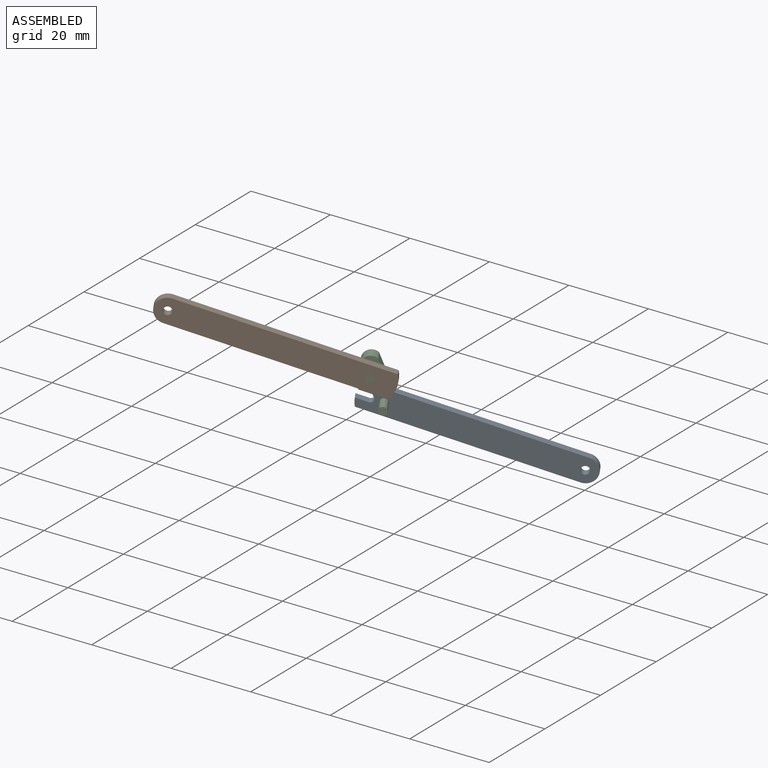
[diagram: assembled view]
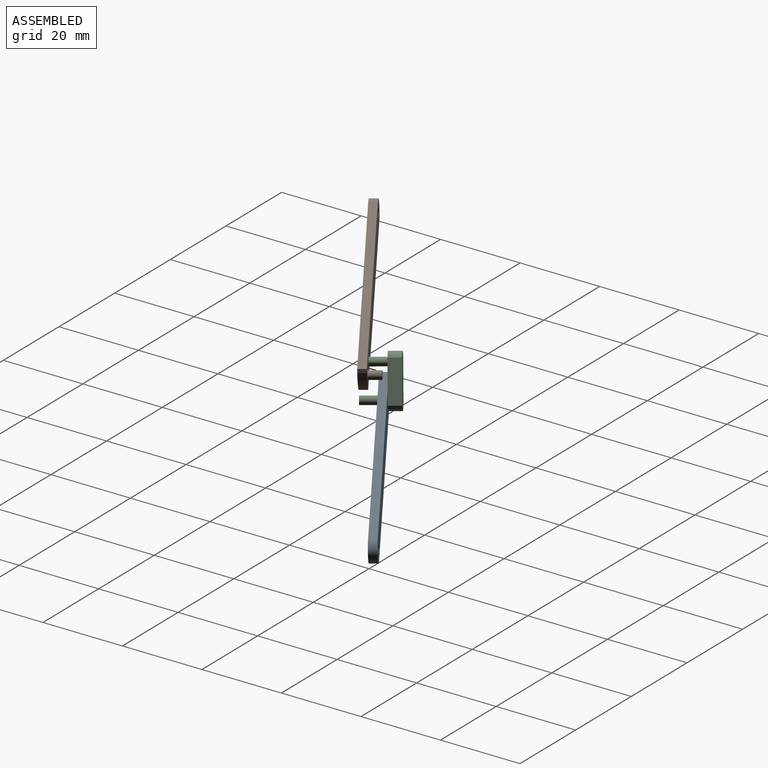
[diagram: assembled view, second angle]
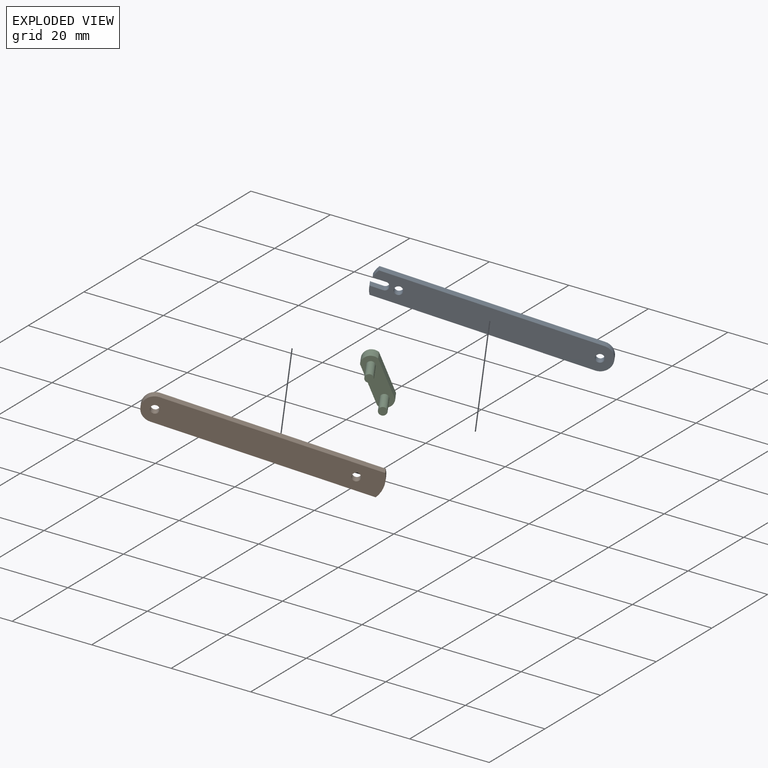
[diagram: exploded view]
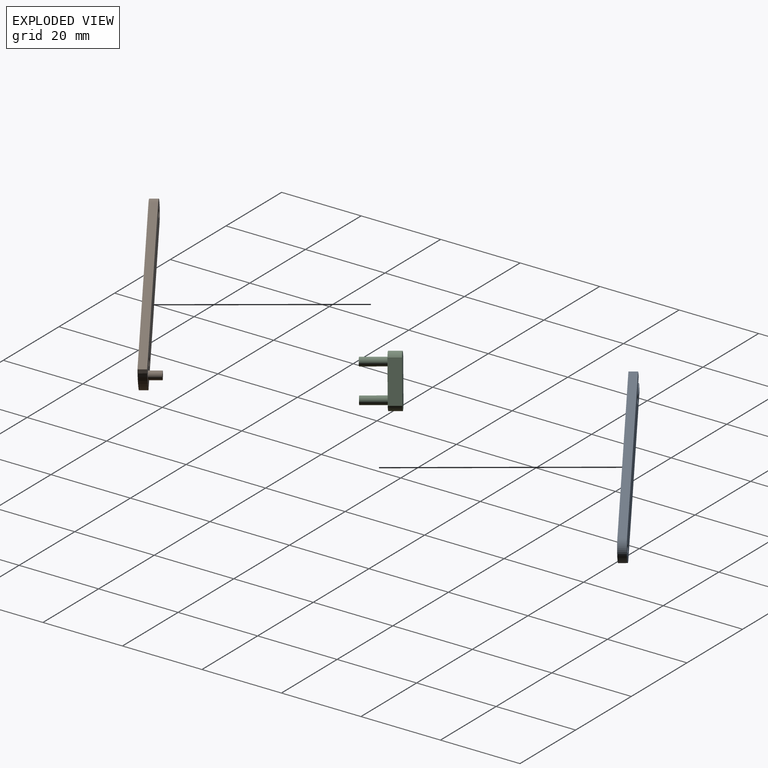
[diagram: exploded view, second angle]
ASSEMBLY  parts=3 mates=3
PART A: 12 faces, bbox 53x2x6 mm
  f0: cylinder r=1mm len=2mm, axis (0,1,0), area 6.3mm2, adj f1,f8,f10,f11
  f1: plane 3x2mm, normal (0,0,1), area 6mm2, adj f0,f2,f10,f11
  f2: cylinder r=6.08mm len=2mm, axis (0,1,0), area 4.3mm2, adj f1,f3,f10,f11
  f3: plane 49.29x2mm, normal (0,0,-1), area 98.6mm2, adj f2,f4,f10,f11
  f4: cylinder r=3mm len=6mm, axis (0,1,0), area 18.8mm2, adj f3,f5,f10,f11
  f5: plane 49.29x2mm, normal (0,0,1), area 98.6mm2, adj f4,f6,f10,f11
  f6: cylinder r=6.08mm len=2mm, axis (0,1,0), area 4.3mm2, adj f5,f8,f10,f11
  f7: cylinder r=1mm len=2mm, axis (0,1,0), area 12.6mm2, adj f10,f11
  f8: plane 3x2mm, normal (0,0,-1), area 6mm2, adj f0,f6,f10,f11
  f9: cylinder r=1mm len=2mm, axis (0,1,0), area 12.6mm2, adj f10,f11
  f10: plane 53x6mm, normal (0,-1,0), area 299.1mm2, adj f0,f1,f2,f3,f4,f5,f6,f7
  f11: plane 53x6mm, normal (0,1,0), area 299.1mm2, adj f0,f1,f2,f3,f4,f5,f6,f7
PART B: 10 faces, bbox 53.1x5x6 mm
  f0: cylinder r=6.08mm len=6mm, axis (0,1,0), area 12.5mm2, adj f1,f5,f6,f7
  f1: plane 49.29x2mm, normal (0,0,-1), area 98.6mm2, adj f0,f2,f6,f7
  f2: cylinder r=3mm len=6mm, axis (0,1,0), area 18.8mm2, adj f1,f5,f6,f7
  f3: cylinder r=1mm len=2mm, axis (0,1,0), area 12.6mm2, adj f6,f7
  f4: cylinder r=1mm len=2mm, axis (0,1,0), area 12.6mm2, adj f6,f7
  f5: plane 49.29x2mm, normal (0,0,1), area 98.6mm2, adj f0,f2,f6,f7
  f6: plane 53.08x6mm, normal (0,-1,0), area 303.7mm2, adj f0,f1,f2,f3,f4,f5,f8
  f7: plane 53.08x6mm, normal (0,1,0), area 306.8mm2, adj f0,f1,f2,f3,f4,f5
  f8: cylinder r=1mm len=3mm, axis (0,1,0), area 18.8mm2, adj f6,f9
  f9: plane 2x2mm, normal (0,-1,0), area 3.1mm2, adj f8
PART C: 10 faces, bbox 12.5x9x4 mm
  f0: plane 10x3mm, normal (0,0,-1), area 30mm2, adj f2,f3,f8,f9
  f1: plane 10x3mm, normal (0,0,1), area 30mm2, adj f2,f3,f8,f9
  f2: plane 12.47x4mm, normal (0,-1,0), area 40.8mm2, adj f0,f1,f4,f6,f8,f9
  f3: plane 12.47x4mm, normal (0,1,0), area 47.1mm2, adj f0,f1,f8,f9
  f4: cylinder r=1mm len=6mm, axis (0,1,0), area 37.7mm2, adj f2,f5
  f5: plane 2x2mm, normal (0,-1,0), area 3.1mm2, adj f4
  f6: cylinder r=1mm len=6mm, axis (0,1,0), area 37.7mm2, adj f2,f7
  f7: plane 2x2mm, normal (0,-1,0), area 3.1mm2, adj f6
  f8: cylinder r=2.24mm len=4mm, axis (0,-1,0), area 14.9mm2, adj f0,f1,f2,f3
  f9: cylinder r=2.24mm len=4mm, axis (0,-1,0), area 14.9mm2, adj f0,f1,f2,f3
PLACE A rot(axis=(-0.1,0.52,0.85),37.1deg) t=(-20.04,22.21,-5.15)mm
PLACE B rot(axis=(-0.17,-0.03,-0.98),148.6deg) t=(-89.51,-28.85,31.05)mm
PLACE C rot(axis=(-0.23,0.9,0.38),76deg) t=(-61.83,-0.66,14.27)mm
MATE revolute B.f0 <-> C.f4  axis (0.52,-0.85,-0.03) through (-55.22,-7.15,13.77)mm
MATE revolute C.f6 <-> A.f2  axis (-0.52,0.85,0.03) through (-56.09,-0.39,6.46)mm
MATE planar C.f6 <-> A.f2  axis (0.52,-0.85,-0.03) through (-56.09,-0.39,6.46)mm
